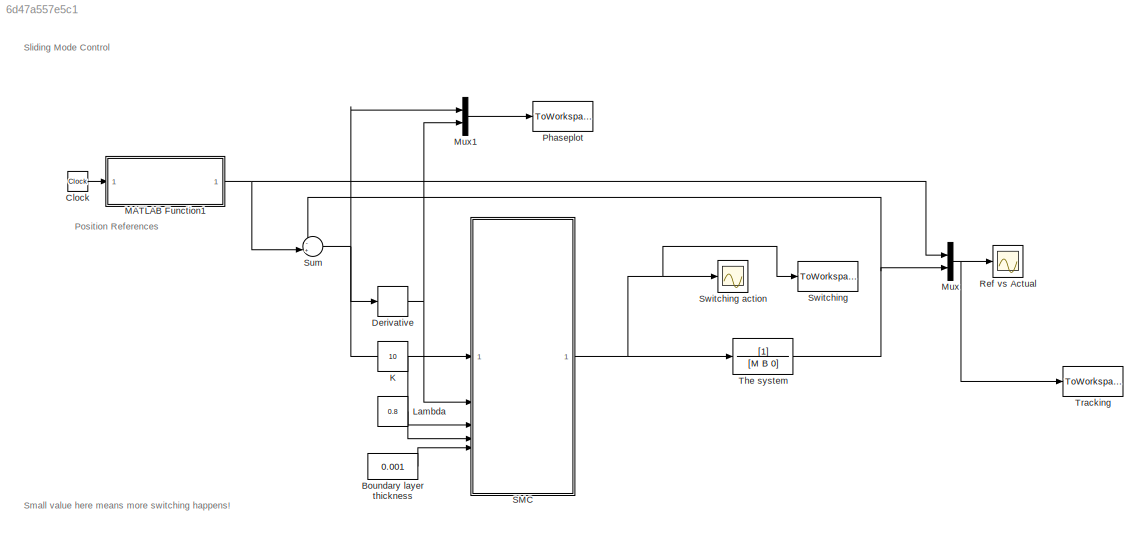
MODEL slx_6d47a557e5c1
KIND model
CONFIG AbsTol = auto
CONFIG EnableMultiTasking = off
CONFIG FixedStep = ts
CONFIG MaxStep = auto
CONFIG MinStep = auto
CONFIG RelTol = 1e-3
CONFIG SampleTimeConstraint = Unconstrained
CONFIG SolverName = ode4
CONFIG StartTime = 0.0
CONFIG StopTime = 10.0
BLOCK [Constant] Boundary layer thickness
  Value = 0.001
BLOCK [Clock] Clock
BLOCK [Derivative] Derivative
BLOCK [Constant] K
  Value = 10
BLOCK [Constant] Lambda
  Value = 0.8
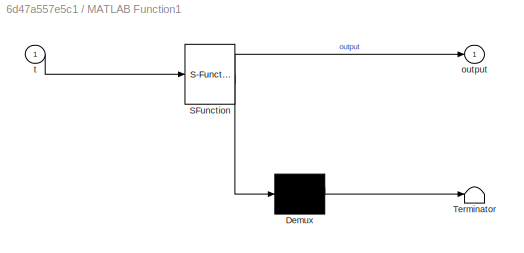
BLOCK [SubSystem] MATLAB Function1
  ErrorFcn = Stateflow.Translate.translate
  PermitHierarchicalResolution = ExplicitOnly
  SFBlockType = MATLAB Function
  TreatAsAtomicUnit = on
BLOCK [Demux] MATLAB Function1/ Demux 
  Outputs = 1
BLOCK [S-Function] MATLAB Function1/ SFunction 
  EnableBusSupport = off
  FunctionName = sf_sfun
  PortCounts = [1 2]
  SFcnIsStateOwnerBlock = off
  SFunctionDeploymentMode = off
  Tag = Stateflow S-Function 4
BLOCK [Terminator] MATLAB Function1/ Terminator 
BLOCK [Outport] MATLAB Function1/output
BLOCK [Inport] MATLAB Function1/t
BLOCK [Mux] Mux
  DisplayOption = bar
  Inputs = 2
BLOCK [Mux] Mux1
  DisplayOption = bar
  Inputs = 2
BLOCK [ToWorkspace] Phaseplot
  FixptAsFi = on
  MaxDataPoints = inf
  SampleTime = -1
  VariableName = phaseplot
BLOCK [Scope] Ref vs Actual
  Floating = off
  NumInputPorts = 1
  ScopeSpecificationString = C++SS(StrPVP('Location','[10, 351, 1690, 1321]'),StrPVP('Open','off'),StrPVP('ZoomMode','yonly'),MxPVP('AxesTitles',54,'struct(''axes1'',''%<SignalLabel>'')'),MxPVP('ScopeGraphics',57,'struct(''FigureColor'',''[0.5 0.5 0.5]'',''AxesColor'',''[0 0 0]'',''AxesTickColor'',''[1 1 1]'',''LineColors'',''[1 1 0;1 0 1;0 1 1;1 0 0;0 1 0;0 0 1]'',''LineStyles'',''-|-|-|-|-|-'',''LineWidths'',''[0.5 0.5 0.5 ...<+248ch>
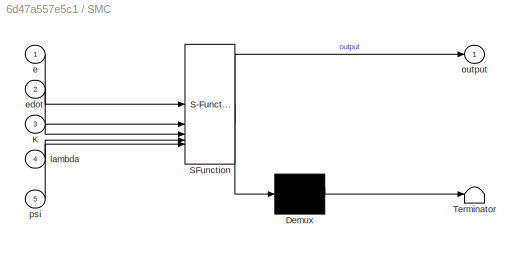
BLOCK [SubSystem] SMC
  ErrorFcn = Stateflow.Translate.translate
  PermitHierarchicalResolution = ExplicitOnly
  SFBlockType = MATLAB Function
  TreatAsAtomicUnit = on
BLOCK [Demux] SMC/ Demux 
  Outputs = 1
BLOCK [S-Function] SMC/ SFunction 
  EnableBusSupport = off
  FunctionName = sf_sfun
  PortCounts = [5 2]
  SFcnIsStateOwnerBlock = off
  SFunctionDeploymentMode = off
  Tag = Stateflow S-Function 2
BLOCK [Terminator] SMC/ Terminator 
BLOCK [Inport] SMC/K
  Port = 3
BLOCK [Inport] SMC/e
BLOCK [Inport] SMC/edot
  Port = 2
BLOCK [Inport] SMC/lambda
  Port = 4
BLOCK [Outport] SMC/output
BLOCK [Inport] SMC/psi
  Port = 5
BLOCK [Sum] Sum
  Inputs = -+|
BLOCK [ToWorkspace] Switching
  FixptAsFi = on
  MaxDataPoints = inf
  SampleTime = -1
  VariableName = switching
BLOCK [Scope] Switching action
  Floating = off
  NumInputPorts = 1
  ScopeSpecificationString = C++SS(StrPVP('Location','[1, 49, 1681, 1019]'),StrPVP('Open','off'),StrPVP('ZoomMode','yonly'),MxPVP('AxesTitles',54,'struct(''axes1'',''%<SignalLabel>'')'),MxPVP('ScopeGraphics',57,'struct(''FigureColor'',''[0.5 0.5 0.5]'',''AxesColor'',''[0 0 0]'',''AxesTickColor'',''[1 1 1]'',''LineColors'',''[1 1 0;1 0 1;0 1 1;1 0 0;0 1 0;0 0 1]'',''LineStyles'',''-|-|-|-|-|-'',''LineWidths'',''[0.5 0.5 0.5 0....<+278ch>
BLOCK [TransferFcn] The system
  Denominator = [M B 0]
BLOCK [ToWorkspace] Tracking
  FixptAsFi = on
  MaxDataPoints = inf
  SampleTime = -1
  VariableName = tracking
ANNOTATION (root): Small value here means more switching happens!
ANNOTATION (root): Sliding Mode Control
ANNOTATION (root): Position References
LINE Boundary layer thickness:1 -> SMC:5
LINE Clock:1 -> MATLAB Function1:1
NET Derivative:1 -> Mux1:2, SMC:2
LINE K:1 -> SMC:3
LINE Lambda:1 -> SMC:4
NET MATLAB Function1:1 -> Mux:1, Sum:2
LINE Mux1:1 -> Phaseplot:1
NET Mux:1 -> Ref vs Actual:1, Tracking:1
NET SMC:1 -> Switching action:1, Switching:1, The system:1
NET Sum:1 -> Derivative:1, Mux1:1, SMC:1
NET The system:1 -> Mux:2, Sum:1
note: NET lines group one-source signal fan-out (src -> all destinations, sorted); 1:1 wires keep LINE
CHART SMC states=1 transitions=1
  STATE_LABEL 'eML_blk_kernel()'
  STATE_LABEL 'SCRIPT:\nfunction output = smc(e, edot, K, lambda, psi)\n%#codegen\n\n    s = lambda * e + edot;\n        \n    if (abs(s) > psi)    \n        sat_s = sign(s);\n    else\n        sat_s = s/psi;\n    end\n    \n    output = -(edot - K * sat_s);\n\nend'
CHART MATLAB Function1 states=1 transitions=1
  STATE_LABEL 'eML_blk_kernel()'
  STATE_LABEL 'SCRIPT:\nfunction output = generate_input(t)\n%#codegen\n\n    output = -pi/2+52.5/180*pi*(1-cos(1.26*t));\nend'
CHART  states=0 transitions=0
CHART  states=0 transitions=0
